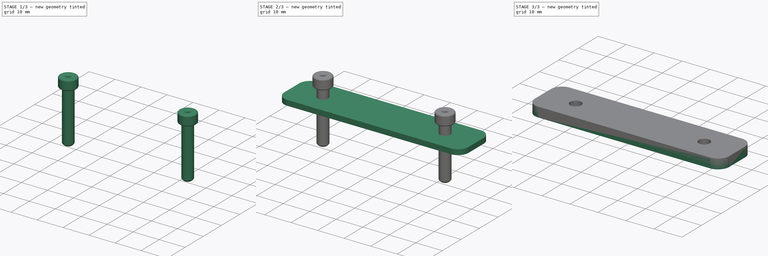
[diagram: build sequence overview — one tinted view per stage of 3, left to right]
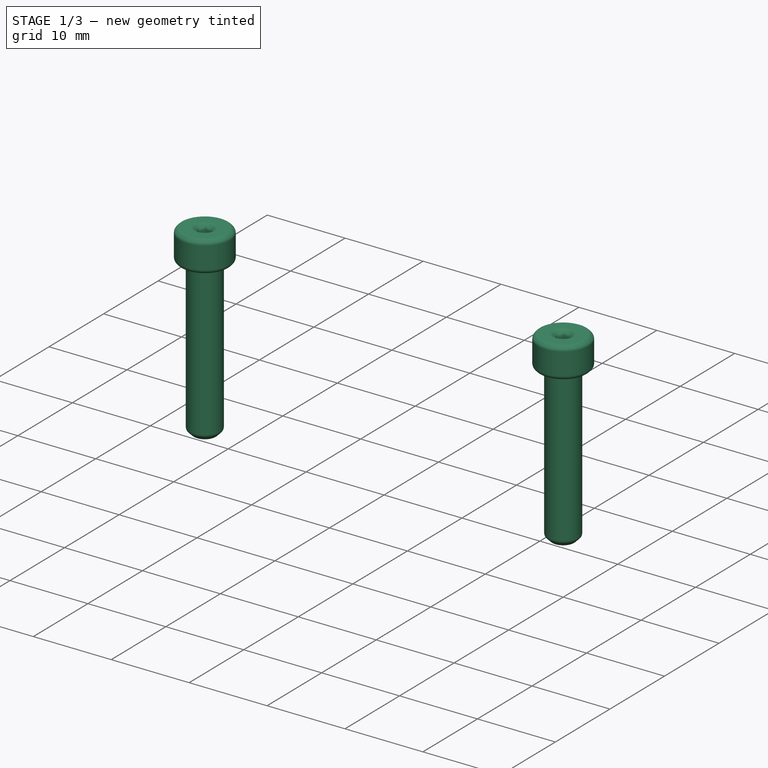
[diagram: stage 1 of 3 — iso view after this stage's code; geometry added in this stage tinted green]
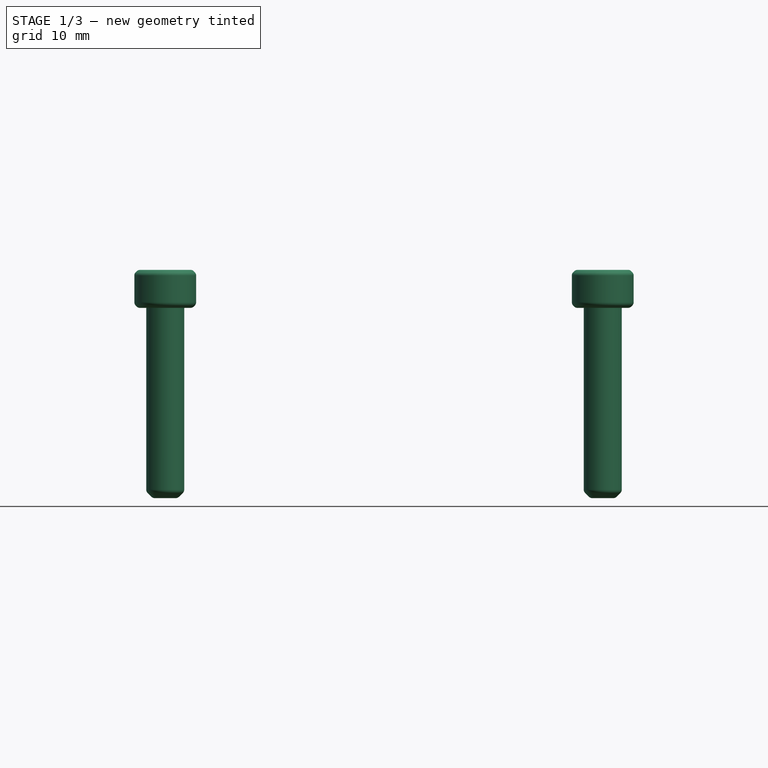
[diagram: stage 1 of 3 — front view after this stage's code; geometry added in this stage tinted green]
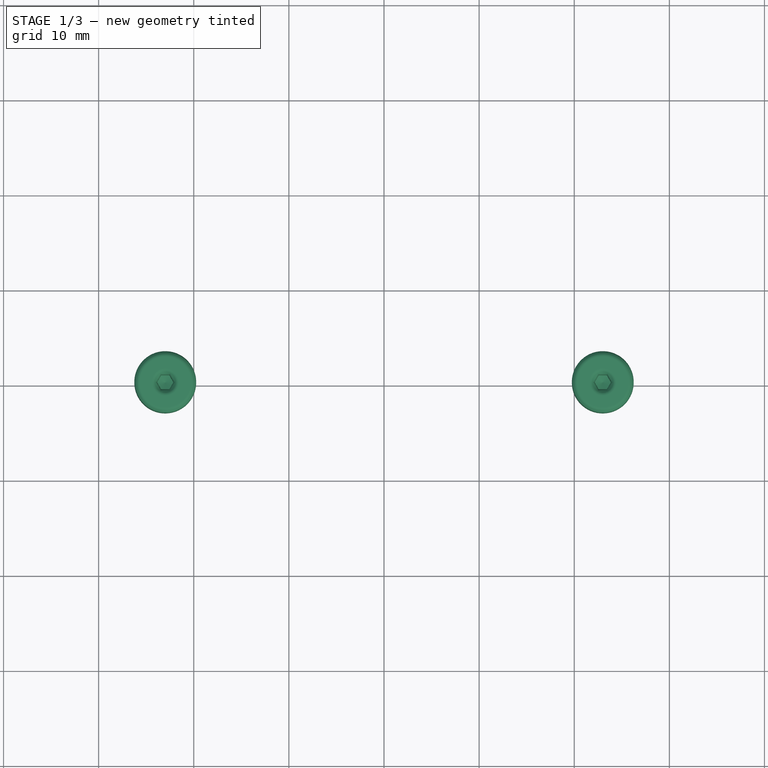
[diagram: stage 1 of 3 — top view after this stage's code; geometry added in this stage tinted green]
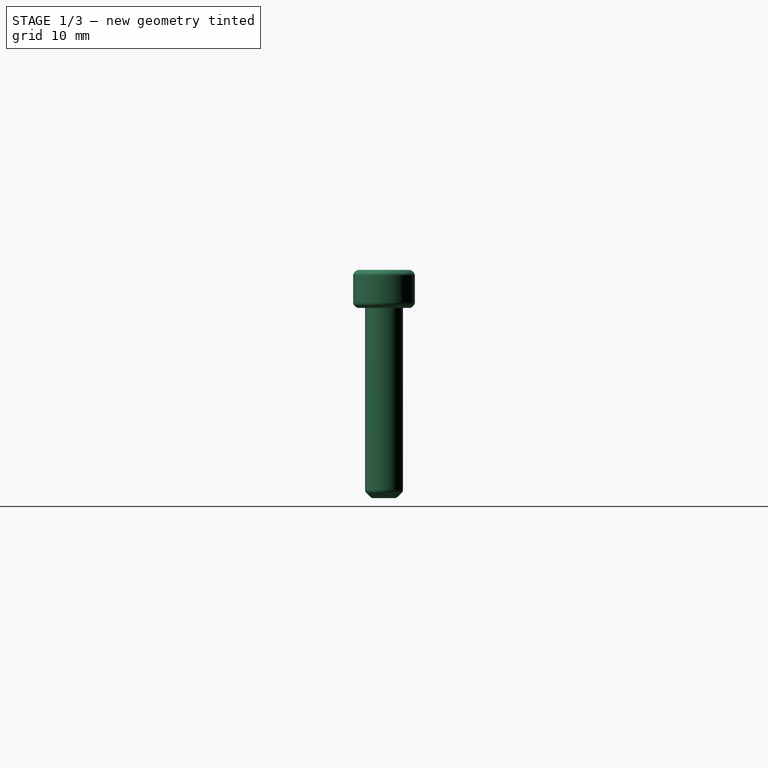
[diagram: stage 1 of 3 — right view after this stage's code; geometry added in this stage tinted green]
FCSTD DOCUMENT  (FreeCAD 0.14R3702 (Git))
Label: chapas_bugaboo
License: CC-BY 3.0
LicenseURL: http://creativecommons.org/licenses/by/3.0/
objects: PartDesign::Pad×2, Part::Cut×2, Sketcher::SketchObject×1, Part::Part2DObjectPython×1, Part::Feature×1, Part::Offset×1, Part::Mirroring×1, Part::MultiFuse×1, Part::FeaturePython×1
note: 13 computed .brp shape members not serialized (recipe doc carries the construction recipe); baked Part::Feature solids carry a one-line shape summary decoded from their .brp

FEATURE [Part::Feature] Part__Feature  label="Chamfer001"
  Placement = pos=(23,0,6.1) rot=(0,0,1;0rad)
  shape: bbox 5.5 x 5.5 x 23 mm, 16 faces (baked)
FEATURE [Part::Offset] Offset
  Fill = false
  Intersection = false
  Join = 0
  Mode = 0
  SelfIntersection = false
  Source = -> Part__Feature
  Value = 0.5
FEATURE [Part::Mirroring] Part__Mirroring  label="Offset (Mirror #1)"
  Base = (0,0,0)
  Normal = (1,0,0)
  Source = -> Offset
FEATURE [Part::MultiFuse] Fusion
  Shapes = -> [Part__Mirroring,Offset]
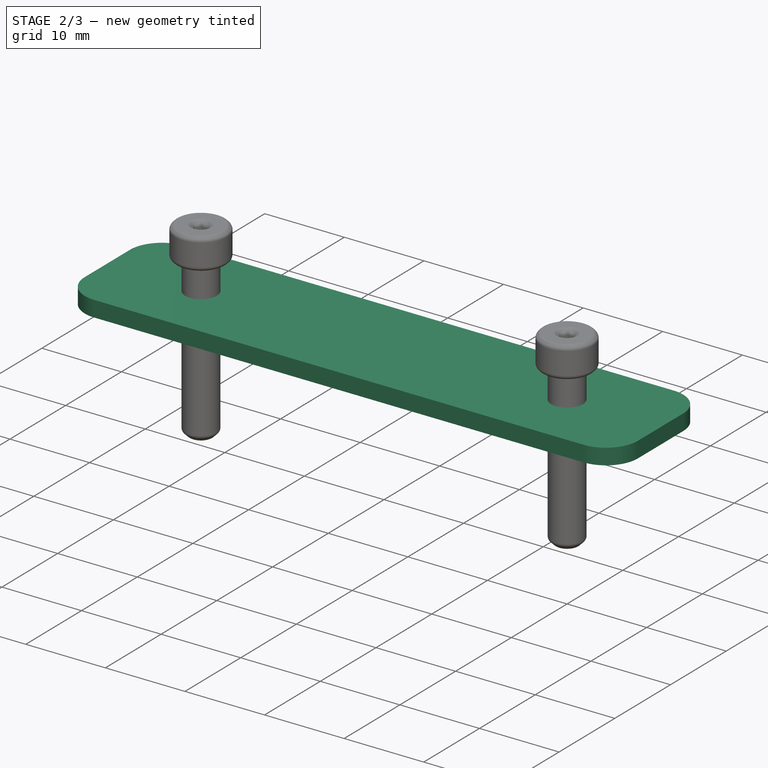
[diagram: stage 2 of 3 — iso view after this stage's code; geometry added in this stage tinted green]
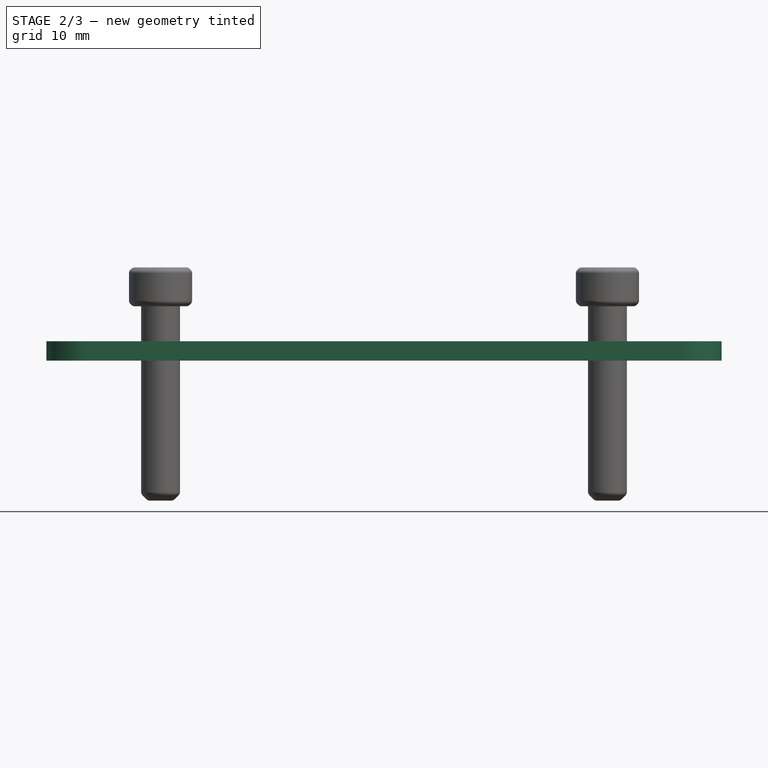
[diagram: stage 2 of 3 — front view after this stage's code; geometry added in this stage tinted green]
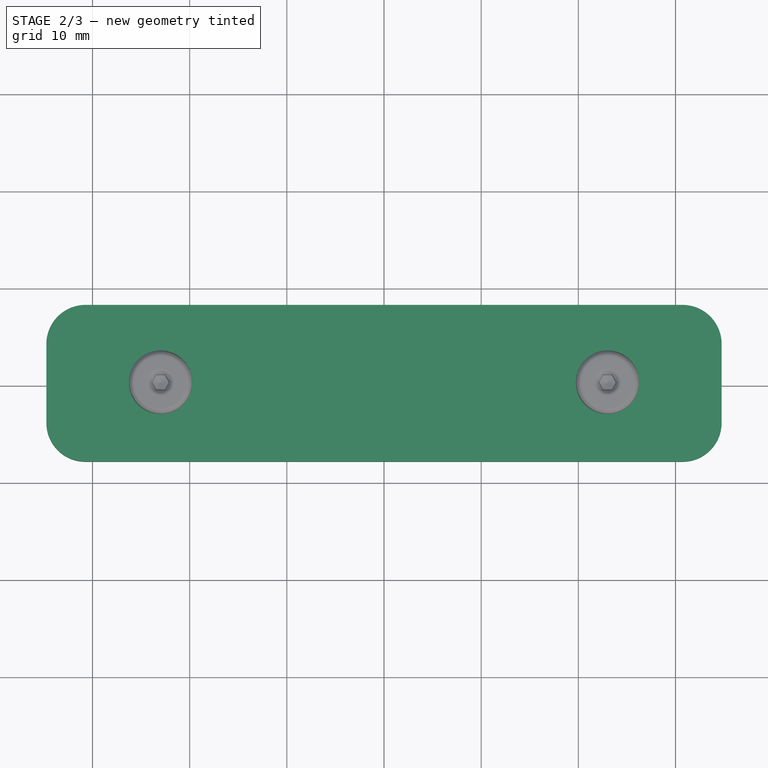
[diagram: stage 2 of 3 — top view after this stage's code; geometry added in this stage tinted green]
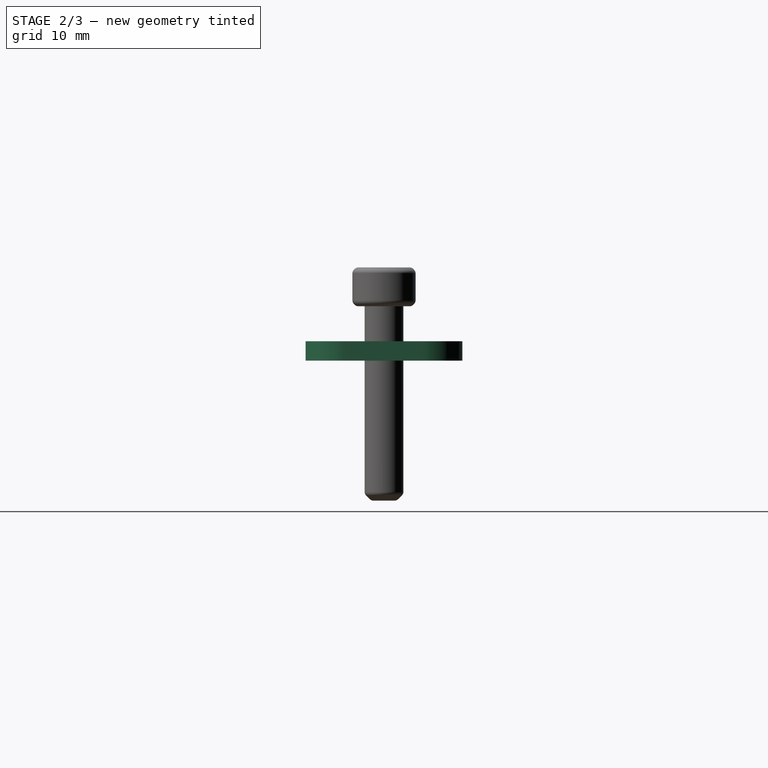
[diagram: stage 2 of 3 — right view after this stage's code; geometry added in this stage tinted green]
FEATURE [Part::Part2DObjectPython] Clone2D  label="Clone of Sketch (2D)"  # Draft 2D object (typed FeaturePython)
  Objects = -> [Sketch]
  Scale = (1,1,1)
FEATURE [PartDesign::Pad] Pad001
  Length = 2
  Length2 = 100
  Sketch = -> Clone2D
  Type = 0
FEATURE [Part::FeaturePython] Clone  label="Clone of Fusion"  # Draft clone (typed FeaturePython)
  Objects = -> [Fusion]
  Scale = (1,1,1)
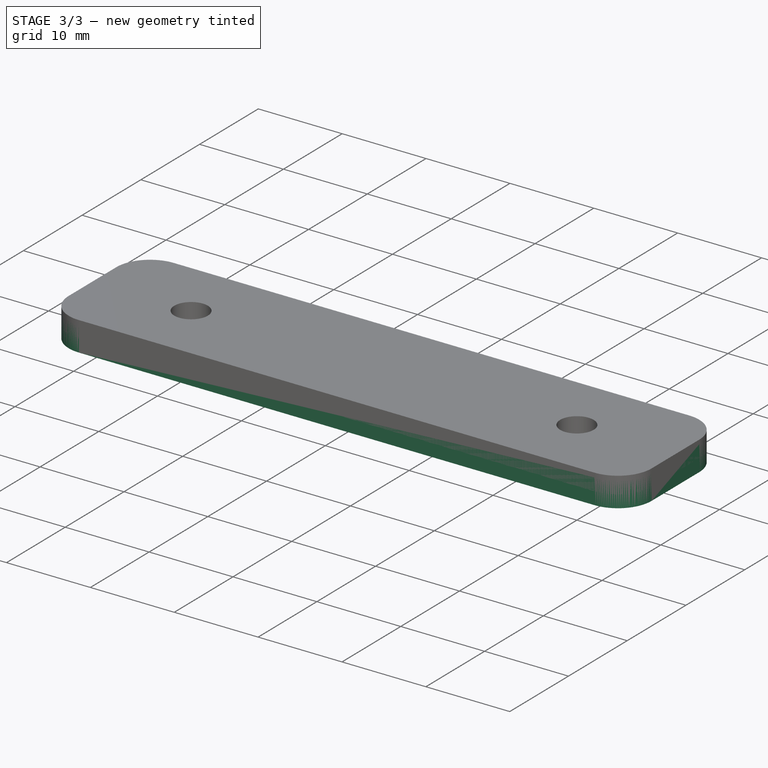
[diagram: stage 3 of 3 — iso view after this stage's code; geometry added in this stage tinted green]
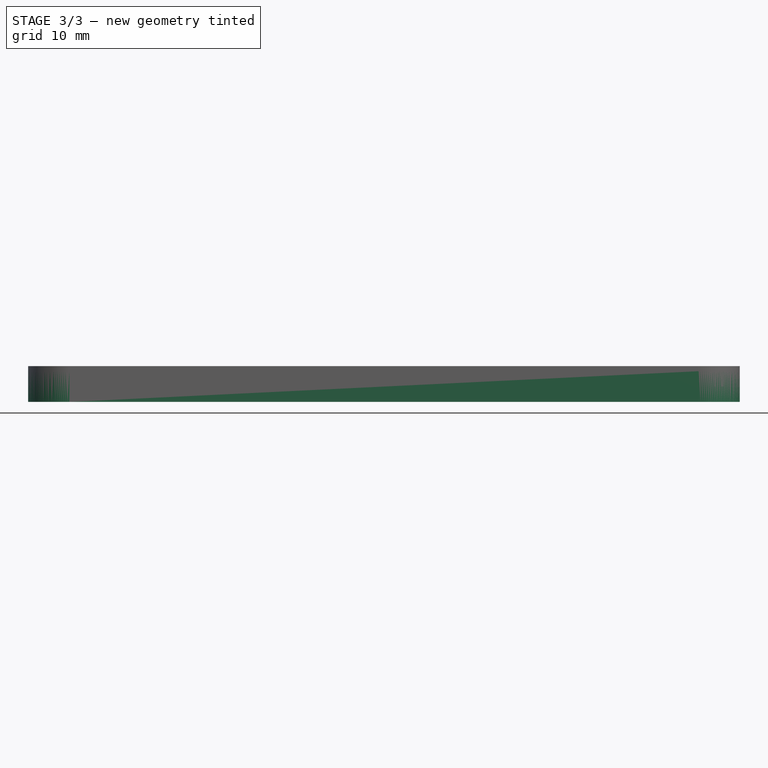
[diagram: stage 3 of 3 — front view after this stage's code; geometry added in this stage tinted green]
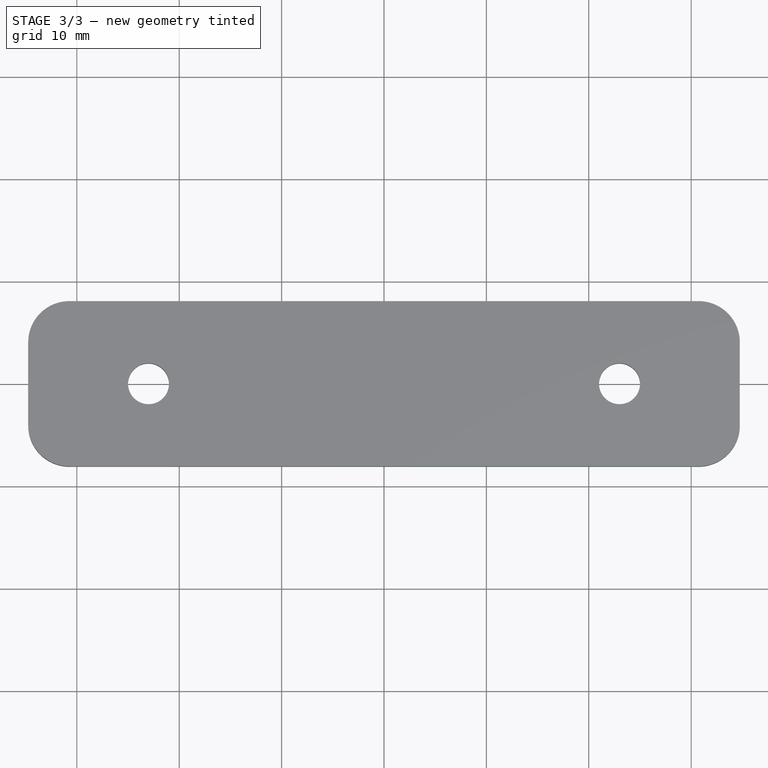
[diagram: stage 3 of 3 — top view after this stage's code; geometry added in this stage tinted green]
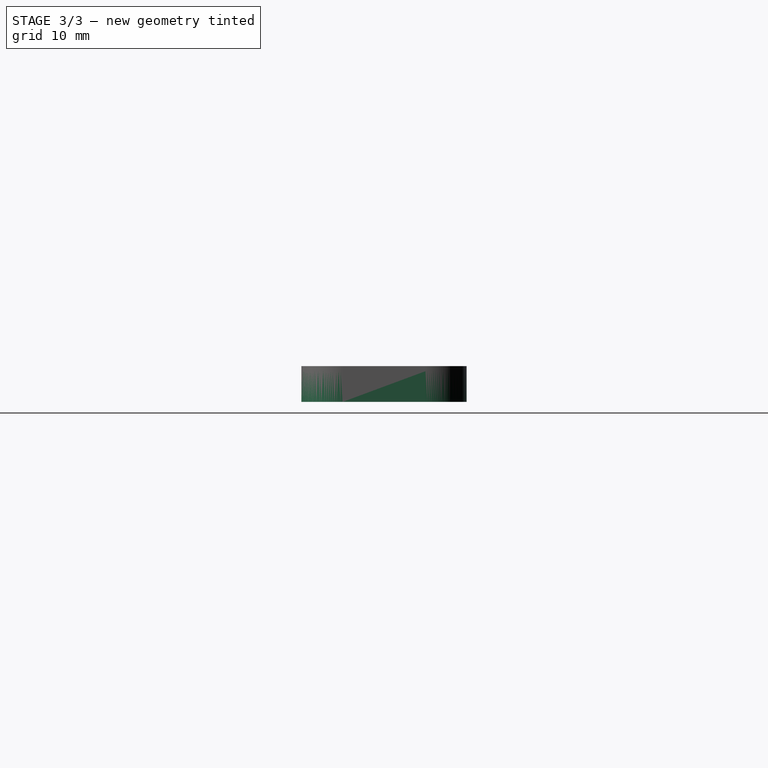
[diagram: stage 3 of 3 — right view after this stage's code; geometry added in this stage tinted green]
FEATURE [Sketcher::SketchObject] Sketch
  sketch-geometry (8):
    g0: LineSegment StartX=-30.7264 StartY=8.06722 StartZ=0 EndX=30.7264 EndY=8.06722 EndZ=0
    g1: LineSegment StartX=34.7503 StartY=4.04337 StartZ=0 EndX=34.7503 EndY=-4.04337 EndZ=0
    g2: LineSegment StartX=30.7264 StartY=-8.06722 StartZ=0 EndX=-30.7264 EndY=-8.06722 EndZ=0
    g3: LineSegment StartX=-34.7503 StartY=-4.04337 StartZ=0 EndX=-34.7503 EndY=4.04337 EndZ=0
    g4: ArcOfCircle CenterX=-30.7264 CenterY=4.04337 CenterZ=0 NormalX=0 NormalY=0 NormalZ=1 Radius=4.02385 StartAngle=1.5708 EndAngle=3.14159
    g5: ArcOfCircle CenterX=-30.7264 CenterY=-4.04337 CenterZ=0 NormalX=0 NormalY=0 NormalZ=1 Radius=4.02385 StartAngle=3.14159 EndAngle=4.71239
    g6: ArcOfCircle CenterX=30.7264 CenterY=4.04337 CenterZ=0 NormalX=0 NormalY=0 NormalZ=1 Radius=4.02385 StartAngle=0 EndAngle=1.5708
    g7: ArcOfCircle CenterX=30.7264 CenterY=-4.04337 CenterZ=0 NormalX=0 NormalY=0 NormalZ=1 Radius=4.02385 StartAngle=4.71239 EndAngle=6.28319
  constraints (15):
    c: Horizontal(g0)
    c: Horizontal(g2)
    c: Vertical(g1)
    c: Vertical(g3)
    c: Tangent(g3,g4)
    c: Tangent(g0,g4)
    c: Tangent(g3,g5)
    c: Tangent(g2,g5)
    c: Tangent(g0,g6)
    c: Tangent(g1,g6)
    c: Tangent(g2,g7)
    c: Tangent(g1,g7)
    c: Symmetric(g4,g5,g-1)
    c: Symmetric(g5,g7,g-2)
    c: Symmetric(g6,g4,g-2)
FEATURE [PartDesign::Pad] Pad
  Length = 3
  Length2 = 100
  Midplane = true
  Sketch = -> Sketch
  Type = 0
FEATURE [Part::Cut] Cut
  Base = -> Pad
  Tool = -> Fusion
FEATURE [Part::Cut] Cut001
  Base = -> Pad001
  Tool = -> Clone
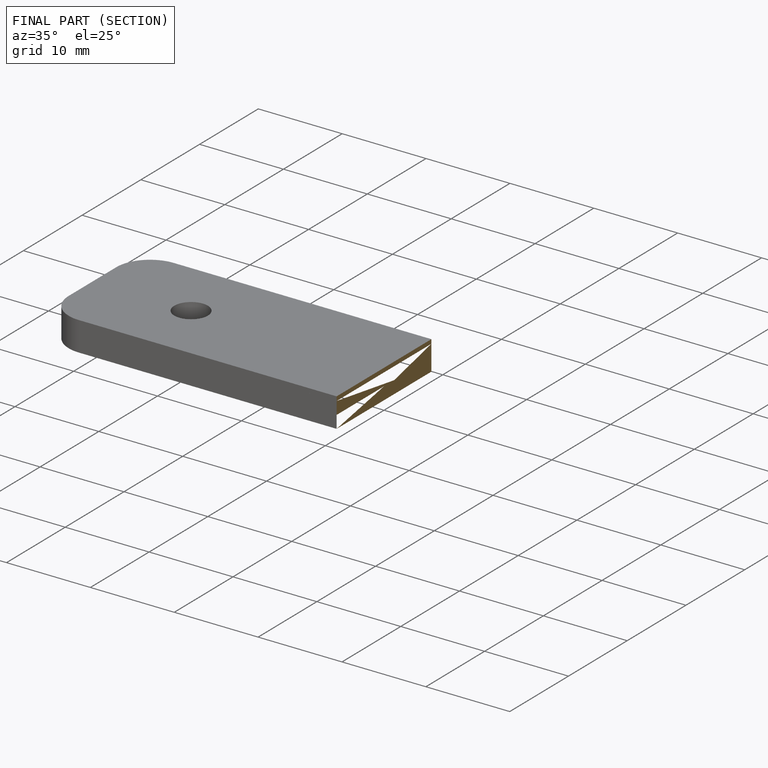
[diagram: finished part — half-section view (interior)]
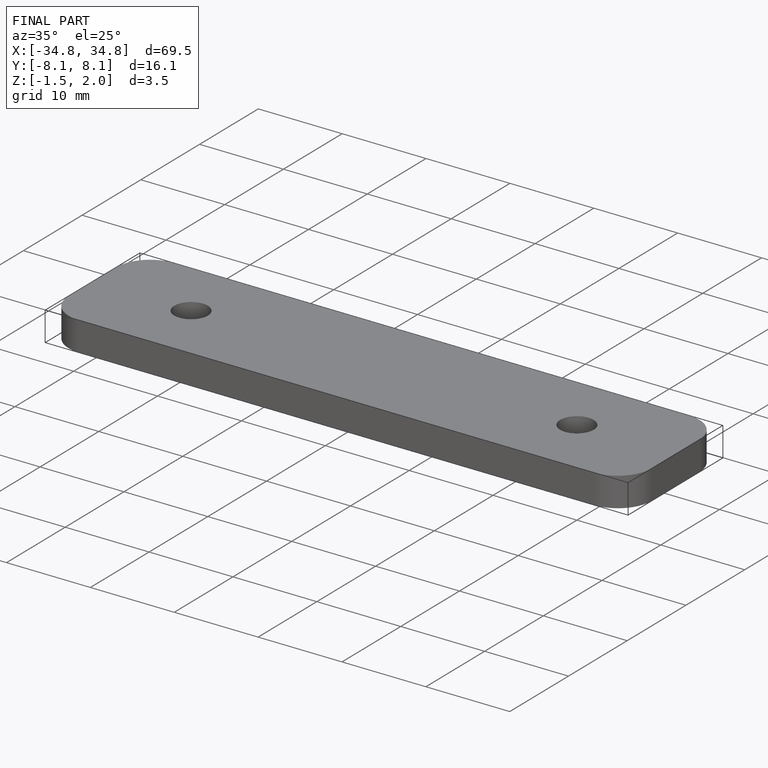
[diagram: finished part — iso view with bounding-box wireframe]
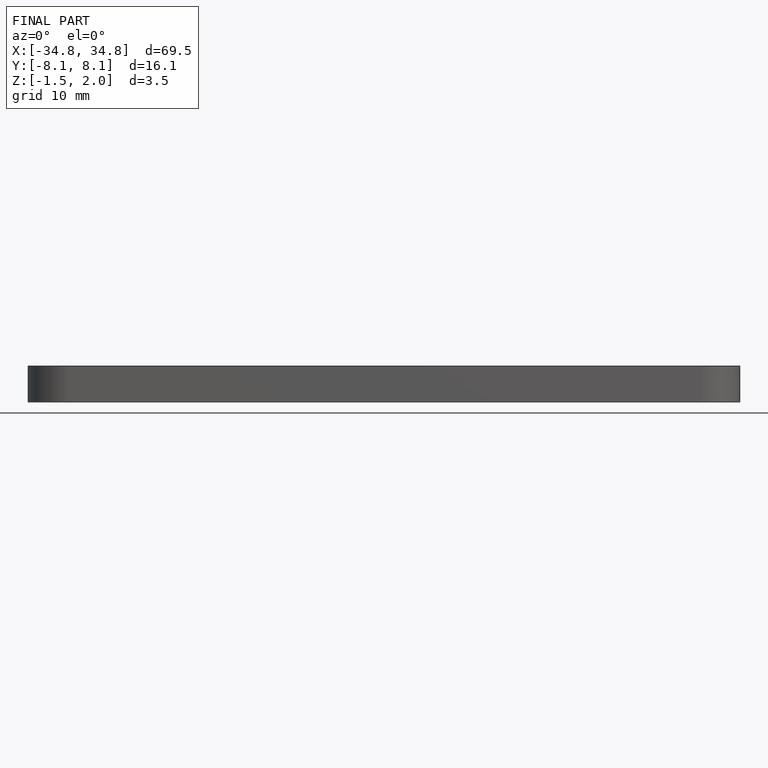
[diagram: finished part — front view with bounding-box wireframe]
